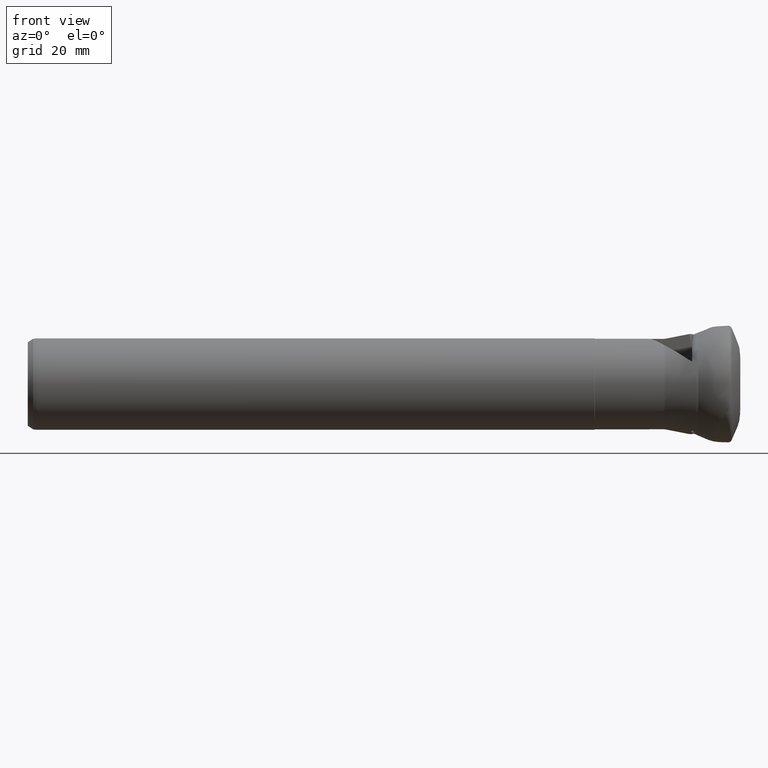
[diagram: clean part render]
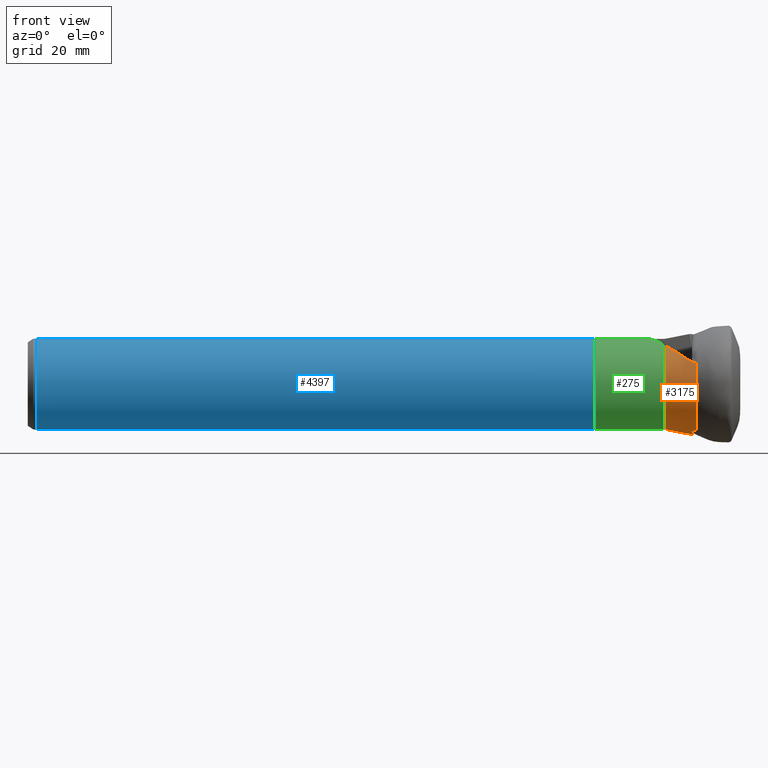
[diagram: same view with three faces highlighted in distinct colors, each labeled with its STEP entity id]
A machine part, front view with three faces highlighted in distinct colors.
Their STEP definitions:

[orange] entity #3175 — the highlighted conical surface has half-angle 10.845 deg.
#25 = CARTESIAN_POINT ( 'NONE',  ( -12.48463755819828900, -12.24165217689133600, 6.293536502592720800 ) ) ;
#84 = CARTESIAN_POINT ( 'NONE',  ( -11.69077448769910000, -3.615201630161818200, -13.44085238544986900 ) ) ;
#146 = CARTESIAN_POINT ( 'NONE',  ( -11.02925917703956000, -12.79861067441094800, 5.779395626261756300 ) ) ;
#175 = DIRECTION ( 'NONE',  ( 1.000000000000000000, -0.0000000000000000000, -0.0000000000000000000 ) ) ;
#239 = CARTESIAN_POINT ( 'NONE',  ( -12.38953671779578700, -4.584484678148489100, -12.99830660113640100 ) ) ;
#289 = B_SPLINE_CURVE_WITH_KNOTS ( 'NONE', 3,
 ( #4054, #860, #4075, #1690, #4452, #2123 ),
 .UNSPECIFIED., .F., .F.,
 ( 4, 2, 4 ),
 ( 5.421010862427522200E-019, 0.0004689846191887401400, 0.0009379692383774801700 ),
 .UNSPECIFIED. ) ;
#293 = B_SPLINE_CURVE_WITH_KNOTS ( 'NONE', 3,
 ( #3316, #1737, #4867, #2556, #25, #2953, #485, #3334 ),
 .UNSPECIFIED., .F., .F.,
 ( 4, 2, 2, 4 ),
 ( 0.001854466259670834900, 0.002552766373837380000, 0.003251066488003925000, 0.004647666716337017400 ),
 .UNSPECIFIED. ) ;
#485 = CARTESIAN_POINT ( 'NONE',  ( -11.46847668512810600, -12.65930190450028000, 5.883437519857838400 ) ) ;
#544 = DIRECTION ( 'NONE',  ( 0.0000000000000000000, 0.0000000000000000000, -1.000000000000000000 ) ) ;
#690 = CARTESIAN_POINT ( 'NONE',  ( -12.37867466272486700, -4.972276862115081500, -12.85711457685265400 ) ) ;
#768 = CARTESIAN_POINT ( 'NONE',  ( -12.84699154354206200, -0.4598034669791161200, -13.68703556957243400 ) ) ;
#771 = FACE_OUTER_BOUND ( 'NONE', #3736, .T. ) ;
#801 = CARTESIAN_POINT ( 'NONE',  ( -12.84435909463576800, -0.4954418570034943000, -13.68629653410403400 ) ) ;
#860 = CARTESIAN_POINT ( 'NONE',  ( -12.83264201964153300, -0.6535580663402837900, -13.68281899243309300 ) ) ;
#890 = VERTEX_POINT ( 'NONE', #801 ) ;
#911 = ORIENTED_EDGE ( 'NONE', *, *, #1094, .T. ) ;
#941 = ORIENTED_EDGE ( 'NONE', *, *, #5230, .T. ) ;
#1077 = DIRECTION ( 'NONE',  ( 1.000000000000000000, -0.0000000000000000000, -0.0000000000000000000 ) ) ;
#1094 = EDGE_CURVE ( 'NONE', #890, #1905, #289, .T. ) ;
#1116 = CARTESIAN_POINT ( 'NONE',  ( -12.22115121417329700, -5.337325577265597000, -12.74239126269342900 ) ) ;
#1219 = CARTESIAN_POINT ( 'NONE',  ( -15.69051209583769900, -10.34482267446805000, 8.370545850244928600 ) ) ;
#1239 = EDGE_CURVE ( 'NONE', #4974, #4558, #4836, .T. ) ;
#1284 = CARTESIAN_POINT ( 'NONE',  ( -12.84435909463576800, -0.4954418570034943000, -13.68629653410403400 ) ) ;
#1471 = VERTEX_POINT ( 'NONE', #2675 ) ;
#1492 = ORIENTED_EDGE ( 'NONE', *, *, #3355, .T. ) ;
#1510 = CARTESIAN_POINT ( 'NONE',  ( -11.72448605640247600, -3.855970498630953500, -13.36466385005033600 ) ) ;
#1524 = CARTESIAN_POINT ( 'NONE',  ( -11.93535424601429200, -5.628973297443345700, -12.67591131569408900 ) ) ;
#1569 = CARTESIAN_POINT ( 'NONE',  ( -12.45613410986681100, -1.332141020560870600, -13.70504729325338600 ) ) ;
#1690 = CARTESIAN_POINT ( 'NONE',  ( -12.65968949744193100, -1.092421151764783500, -13.68785800798146600 ) ) ;
#1732 = EDGE_CURVE ( 'Kante167', #5000, #3650, #1789, .T. ) ;
#1737 = CARTESIAN_POINT ( 'NONE',  ( -13.23311739749768800, -11.85376808269322300, 6.710998224774021600 ) ) ;
#1789 = B_SPLINE_CURVE_WITH_KNOTS ( 'NONE', 3,
 ( #2022, #4359, #2406, #4741 ),
 .UNSPECIFIED., .F., .F.,
 ( 4, 4 ),
 ( 0.001900804661724751000, 0.008471916973087403500 ),
 .UNSPECIFIED. ) ;
#1816 = AXIS2_PLACEMENT_3D ( 'NONE', #2684, #175, #3080 ) ;
#1905 = VERTEX_POINT ( 'NONE', #3703 ) ;
#1950 = CARTESIAN_POINT ( 'NONE',  ( -11.55748605969811200, -5.797240220071261200, -12.67934703913336500 ) ) ;
#1986 = CARTESIAN_POINT ( 'NONE',  ( -12.87635612552166400, -0.3933329434660878300, -13.68351918617245900 ) ) ;
#2022 = CARTESIAN_POINT ( 'NONE',  ( -12.89099991687611900, -0.3601079019870963600, -13.68158724386874100 ) ) ;
#2113 = AXIS2_PLACEMENT_3D ( 'NONE', #4992, #2301, #544 ) ;
#2123 = CARTESIAN_POINT ( 'NONE',  ( -12.45613410986681100, -1.332141020560870600, -13.70504729325338600 ) ) ;
#2136 = CARTESIAN_POINT ( 'NONE',  ( -12.84699154354206200, -0.4598034669791161200, -13.68703556957243400 ) ) ;
#2179 = CARTESIAN_POINT ( 'NONE',  ( -19.32556363557016300, -0.8100564290826706100, -12.42721098533912600 ) ) ;
#2301 = DIRECTION ( 'NONE',  ( 1.000000000000000000, -0.0000000000000000000, -0.0000000000000000000 ) ) ;
#2350 = CARTESIAN_POINT ( 'NONE',  ( -12.16888238562022200, -4.121284869354194100, -13.19640657834671400 ) ) ;
#2366 = CARTESIAN_POINT ( 'NONE',  ( -11.15302565588185900, -5.804153945987366100, -12.76149217255062500 ) ) ;
#2403 = CARTESIAN_POINT ( 'NONE',  ( -11.61871782507151900, -3.128100680945735200, -13.57430880262749000 ) ) ;
#2406 = CARTESIAN_POINT ( 'NONE',  ( -17.18135000374870800, -0.6601184056836066900, -12.84864727982190400 ) ) ;
#2420 = CARTESIAN_POINT ( 'NONE',  ( -12.89099991687611900, -0.3601079019870963600, -13.68158724386874100 ) ) ;
#2556 = CARTESIAN_POINT ( 'NONE',  ( -12.67963675093225700, -12.14880791895752700, 6.391480844682606100 ) ) ;
#2594 = CARTESIAN_POINT ( 'NONE',  ( -11.72448605640247600, -3.855970498630953500, -13.36466385005033600 ) ) ;
#2609 = CARTESIAN_POINT ( 'NONE',  ( -11.65551045496850500, -3.372523609063497100, -13.51074980527486200 ) ) ;
#2675 = CARTESIAN_POINT ( 'NONE',  ( -19.32556363557016300, -6.787161694477368300, 10.44156120632593100 ) ) ;
#2684 = CARTESIAN_POINT ( 'NONE',  ( -11.02925917703945500, 0.0000000000000000000, 0.0000000000000000000 ) ) ;
#2685 = ORIENTED_EDGE ( 'NONE', *, *, #3489, .F. ) ;
#2736 = CARTESIAN_POINT ( 'NONE',  ( -12.35902675791552600, -4.457576692594705600, -13.04842252063494900 ) ) ;
#2805 = EDGE_CURVE ( 'NONE', #4974, #4934, #4721, .T. ) ;
#2837 = ORIENTED_EDGE ( 'NONE', *, *, #3006, .F. ) ;
#2853 = EDGE_CURVE ( 'NONE', #1905, #4558, #3842, .T. ) ;
#2882 = ORIENTED_EDGE ( 'NONE', *, *, #2853, .T. ) ;
#2925 =( BOUNDED_CURVE ( )  B_SPLINE_CURVE ( 3, ( #1284, #4088, #4470, #2136 ),
 .UNSPECIFIED., .F., .F. ) 
 B_SPLINE_CURVE_WITH_KNOTS ( ( 4, 4 ),
 ( 2.767099512888700800, 2.769610021100673300 ),
 .UNSPECIFIED. ) 
 CURVE ( )  GEOMETRIC_REPRESENTATION_ITEM ( )  RATIONAL_B_SPLINE_CURVE ( ( 1.000000000000000000, 0.9999994747791121100, 0.9999994747791121100, 1.000000000000000000 ) ) 
 REPRESENTATION_ITEM ( '' )  );
#2953 = CARTESIAN_POINT ( 'NONE',  ( -11.88700554729628500, -12.50397038098807600, 6.026988727507980300 ) ) ;
#3002 = ORIENTED_EDGE ( 'NONE', *, *, #2805, .T. ) ;
#3005 = CARTESIAN_POINT ( 'NONE',  ( -11.72448605640247600, -3.855970498630953500, -13.36466385005033600 ) ) ;
#3006 = EDGE_CURVE ( 'NONE', #890, #3754, #2925, .T. ) ;
#3072 =( BOUNDED_CURVE ( )  B_SPLINE_CURVE ( 3, ( #3233, #4765, #1219, #4023 ),
 .UNSPECIFIED., .F., .T. ) 
 B_SPLINE_CURVE_WITH_KNOTS ( ( 4, 4 ),
 ( 3.833724541972454200, 4.245131218430410400 ),
 .UNSPECIFIED. ) 
 CURVE ( )  GEOMETRIC_REPRESENTATION_ITEM ( )  RATIONAL_B_SPLINE_CURVE ( ( 1.000000000000000000, 0.9859450438682444400, 0.9859450438682444400, 1.000000000000000000 ) ) 
 REPRESENTATION_ITEM ( '' )  );
#3080 = DIRECTION ( 'NONE',  ( 0.0000000000000000000, 0.0000000000000000000, -1.000000000000000000 ) ) ;
#3135 = CARTESIAN_POINT ( 'NONE',  ( -12.39912038162440000, -4.843061755167534300, -12.90223314571936100 ) ) ;
#3143 = VERTEX_POINT ( 'NONE', #3385 ) ;
#3173 = EDGE_CURVE ( 'NONE', #3870, #4934, #4982, .T. ) ;
#3175 = ADVANCED_FACE ( 'NONE', ( #771 ), #3753, .T. ) ;
#3201 = CARTESIAN_POINT ( 'NONE',  ( -12.86168660798711000, -0.4265649338345133800, -13.68533530213833100 ) ) ;
#3233 = CARTESIAN_POINT ( 'NONE',  ( -19.32556363557016300, -6.787161694477368300, 10.44156120632593100 ) ) ;
#3316 = CARTESIAN_POINT ( 'NONE',  ( -13.40527637212814800, -11.74805511178591600, 6.827262013307660000 ) ) ;
#3334 = CARTESIAN_POINT ( 'NONE',  ( -11.02925917703956000, -12.79861067441094800, 5.779395626261756300 ) ) ;
#3355 = EDGE_CURVE ( 'NONE', #5000, #3754, #4866, .T. ) ;
#3364 = CARTESIAN_POINT ( 'NONE',  ( -12.89099991687611900, -0.3601079019870963600, -13.68158724386874100 ) ) ;
#3385 = CARTESIAN_POINT ( 'NONE',  ( -13.40527637212814800, -11.74805511178591600, 6.827262013307660000 ) ) ;
#3389 = CARTESIAN_POINT ( 'NONE',  ( -11.61871782507151900, -3.128100680945735200, -13.57430880262749000 ) ) ;
#3408 = CARTESIAN_POINT ( 'NONE',  ( -12.84699154354206200, -0.4598034669791161200, -13.68703556957243400 ) ) ;
#3479 = CARTESIAN_POINT ( 'NONE',  ( -19.32556363557016300, 0.0000000000000000000, 0.0000000000000000000 ) ) ;
#3489 = EDGE_CURVE ( 'NONE', #1471, #3143, #3072, .T. ) ;
#3505 = CARTESIAN_POINT ( 'NONE',  ( -11.61871782507151900, -3.128100680945735200, -13.57430880262749000 ) ) ;
#3520 = CARTESIAN_POINT ( 'NONE',  ( -12.28880361217625100, -5.221765458768220300, -12.77642616724598300 ) ) ;
#3587 = AXIS2_PLACEMENT_3D ( 'NONE', #3479, #1077, #3892 ) ;
#3650 = VERTEX_POINT ( 'NONE', #2179 ) ;
#3703 = CARTESIAN_POINT ( 'NONE',  ( -12.45613410986681100, -1.332141020560870600, -13.70504729325338600 ) ) ;
#3736 = EDGE_LOOP ( 'NONE', ( #2685, #941, #5057, #1492, #2837, #911, #2882, #4702, #3002, #4424, #5114 ) ) ;
#3753 = CONICAL_SURFACE ( 'NONE', #2113, 14.04299999999999700, 0.1892875687147432000 ) ;
#3754 = VERTEX_POINT ( 'NONE', #3408 ) ;
#3842 =( BOUNDED_CURVE ( )  B_SPLINE_CURVE ( 3, ( #1569, #3960, #4726, #2403 ),
 .UNSPECIFIED., .F., .T. ) 
 B_SPLINE_CURVE_WITH_KNOTS ( ( 4, 4 ),
 ( 4.313403113203619000, 4.439529772579418500 ),
 .UNSPECIFIED. ) 
 CURVE ( )  GEOMETRIC_REPRESENTATION_ITEM ( )  RATIONAL_B_SPLINE_CURVE ( ( 1.000000000000000000, 0.9986747781023805900, 0.9986747781023805900, 1.000000000000000000 ) ) 
 REPRESENTATION_ITEM ( '' )  );
#3870 = VERTEX_POINT ( 'NONE', #146 ) ;
#3892 = DIRECTION ( 'NONE',  ( 0.0000000000000000000, 0.0000000000000000000, -1.000000000000000000 ) ) ;
#3914 = CARTESIAN_POINT ( 'NONE',  ( -11.85249909761524400, -3.891392660712769600, -13.32891859892706800 ) ) ;
#3932 = CARTESIAN_POINT ( 'NONE',  ( -12.04355687561409400, -5.542338385596836200, -12.69170100726583600 ) ) ;
#3960 = CARTESIAN_POINT ( 'NONE',  ( -12.18333096745414700, -1.933032816898223800, -13.69915040932523300 ) ) ;
#4023 = CARTESIAN_POINT ( 'NONE',  ( -13.40527637212814800, -11.74805511178591600, 6.827262013307660000 ) ) ;
#4054 = CARTESIAN_POINT ( 'NONE',  ( -12.84435909463576800, -0.4954418570034943000, -13.68629653410403400 ) ) ;
#4075 = CARTESIAN_POINT ( 'NONE',  ( -12.79277196986690000, -0.8059744644325048700, -13.68216871123295600 ) ) ;
#4088 = CARTESIAN_POINT ( 'NONE',  ( -12.84523939015374300, -0.4835626985558640900, -13.68655779933857600 ) ) ;
#4300 = CARTESIAN_POINT ( 'NONE',  ( -11.69229949827026100, -5.756828675168820900, -12.66952287877470300 ) ) ;
#4359 = CARTESIAN_POINT ( 'NONE',  ( -15.03643699928836100, -0.5101314773855444300, -13.26647086254141800 ) ) ;
#4424 = ORIENTED_EDGE ( 'NONE', *, *, #3173, .F. ) ;
#4452 = CARTESIAN_POINT ( 'NONE',  ( -12.56890336999146900, -1.221187558967547800, -13.69412576938039400 ) ) ;
#4470 = CARTESIAN_POINT ( 'NONE',  ( -12.84611687358338200, -0.4716832289750594900, -13.68680414462409300 ) ) ;
#4509 = CARTESIAN_POINT ( 'NONE',  ( -11.02925917703947100, -5.760464015571924000, -12.80714266826527000 ) ) ;
#4558 = VERTEX_POINT ( 'NONE', #3505 ) ;
#4621 = CIRCLE ( 'NONE', #3587, 12.45358439536311000 ) ;
#4672 = CARTESIAN_POINT ( 'NONE',  ( -11.97130863296027800, -3.954463211050386600, -13.28684896516153900 ) ) ;
#4684 = CARTESIAN_POINT ( 'NONE',  ( -11.28856553954107000, -5.820776543473405300, -12.72523541684814300 ) ) ;
#4702 = ORIENTED_EDGE ( 'NONE', *, *, #1239, .F. ) ;
#4721 = B_SPLINE_CURVE_WITH_KNOTS ( 'NONE', 3,
 ( #1510, #3914, #4672, #2350, #5039, #2736, #239, #3135, #690, #3520, #1116, #3932, #1524, #4300, #1950, #4684, #2366, #5058 ),
 .UNSPECIFIED., .F., .F.,
 ( 4, 2, 2, 2, 2, 2, 2, 2, 4 ),
 ( 0.0007220750481062820600, 0.001132804814410613700, 0.001543534580714945400, 0.001954264347019276900, 0.002364994113323608300, 0.002775723879627939800, 0.003186453645932271800, 0.003597183412236603300, 0.004007913178540934700 ),
 .UNSPECIFIED. ) ;
#4726 = CARTESIAN_POINT ( 'NONE',  ( -11.90382179417870700, -2.532480438140658900, -13.65551308330994700 ) ) ;
#4741 = CARTESIAN_POINT ( 'NONE',  ( -19.32556363557016300, -0.8100564290826706100, -12.42721098533912600 ) ) ;
#4765 = CARTESIAN_POINT ( 'NONE',  ( -17.69207303484448300, -8.667618504329912100, 9.592486571145551400 ) ) ;
#4836 =( BOUNDED_CURVE ( )  B_SPLINE_CURVE ( 3, ( #3005, #84, #2609, #3389 ),
 .UNSPECIFIED., .F., .F. ) 
 B_SPLINE_CURVE_WITH_KNOTS ( ( 4, 4 ),
 ( 3.652655049215872000, 3.704687454947443600 ),
 .UNSPECIFIED. ) 
 CURVE ( )  GEOMETRIC_REPRESENTATION_ITEM ( )  RATIONAL_B_SPLINE_CURVE ( ( 1.000000000000000000, 0.9997743984546447700, 0.9997743984546447700, 1.000000000000000000 ) ) 
 REPRESENTATION_ITEM ( '' )  );
#4866 =( BOUNDED_CURVE ( )  B_SPLINE_CURVE ( 3, ( #2420, #1986, #3201, #768 ),
 .UNSPECIFIED., .F., .T. ) 
 B_SPLINE_CURVE_WITH_KNOTS ( ( 4, 4 ),
 ( 4.245311037378050000, 4.252302622021335100 ),
 .UNSPECIFIED. ) 
 CURVE ( )  GEOMETRIC_REPRESENTATION_ITEM ( )  RATIONAL_B_SPLINE_CURVE ( ( 1.000000000000000000, 0.9999959264828295300, 0.9999959264828295300, 1.000000000000000000 ) ) 
 REPRESENTATION_ITEM ( '' )  );
#4867 = CARTESIAN_POINT ( 'NONE',  ( -13.05372806684217200, -11.95489170372424900, 6.600203895989804600 ) ) ;
#4903 = EDGE_CURVE ( 'NONE', #3143, #3870, #293, .T. ) ;
#4934 = VERTEX_POINT ( 'NONE', #4509 ) ;
#4974 = VERTEX_POINT ( 'NONE', #2594 ) ;
#4982 = CIRCLE ( 'NONE', #1816, 14.04299999999999700 ) ;
#4992 = CARTESIAN_POINT ( 'NONE',  ( -11.02925917703945500, 0.0000000000000000000, 0.0000000000000000000 ) ) ;
#5000 = VERTEX_POINT ( 'NONE', #3364 ) ;
#5039 = CARTESIAN_POINT ( 'NONE',  ( -12.24908949290502500, -4.226226841347886100, -13.14730329380991200 ) ) ;
#5057 = ORIENTED_EDGE ( 'NONE', *, *, #1732, .F. ) ;
#5058 = CARTESIAN_POINT ( 'NONE',  ( -11.02925917703947100, -5.760464015571924000, -12.80714266826527000 ) ) ;
#5114 = ORIENTED_EDGE ( 'NONE', *, *, #4903, .F. ) ;
#5230 = EDGE_CURVE ( 'NONE', #1471, #3650, #4621, .T. ) ;

[blue] entity #4397 — the highlighted cylindrical surface (bore or boss wall) has radius 12.5 mm, axis along (-1, -0, -0).
#118 = DIRECTION ( 'NONE',  ( -1.000000000000000000, -0.0000000000000000000, -0.0000000000000000000 ) ) ;
#695 = AXIS2_PLACEMENT_3D ( 'NONE', #1827, #118, #2244 ) ;
#1268 = CARTESIAN_POINT ( 'NONE',  ( -191.4052591770391400, 0.0000000000000000000, 0.0000000000000000000 ) ) ;
#1487 = CARTESIAN_POINT ( 'NONE',  ( -38.88205409628258000, 0.0000000000000000000, 12.50000000000000000 ) ) ;
#1644 = AXIS2_PLACEMENT_3D ( 'NONE', #1268, #4074, #1689 ) ;
#1689 = DIRECTION ( 'NONE',  ( 0.0000000000000000000, 0.0000000000000000000, -1.000000000000000000 ) ) ;
#1827 = CARTESIAN_POINT ( 'NONE',  ( -33.90525917703946100, 0.0000000000000000000, 0.0000000000000000000 ) ) ;
#1871 = DIRECTION ( 'NONE',  ( 1.000000000000000000, -0.0000000000000000000, -0.0000000000000000000 ) ) ;
#2244 = DIRECTION ( 'NONE',  ( 0.0000000000000000000, 0.0000000000000000000, 1.000000000000000000 ) ) ;
#2321 = VERTEX_POINT ( 'NONE', #4259 ) ;
#2457 = CIRCLE ( 'NONE', #2825, 12.50000000000000000 ) ;
#2825 = AXIS2_PLACEMENT_3D ( 'NONE', #4226, #1871, #4613 ) ;
#3351 = VERTEX_POINT ( 'NONE', #1487 ) ;
#3681 = CYLINDRICAL_SURFACE ( 'NONE', #695, 12.50000000000000000 ) ;
#3802 = FACE_OUTER_BOUND ( 'NONE', #4462, .T. ) ;
#3812 = CIRCLE ( 'NONE', #1644, 12.50000000000000000 ) ;
#3875 = EDGE_CURVE ( 'NONE', #3351, #3351, #2457, .T. ) ;
#3920 = FACE_OUTER_BOUND ( 'NONE', #4206, .T. ) ;
#4074 = DIRECTION ( 'NONE',  ( -1.000000000000000000, 0.0000000000000000000, 0.0000000000000000000 ) ) ;
#4206 = EDGE_LOOP ( 'NONE', ( #4686 ) ) ;
#4226 = CARTESIAN_POINT ( 'NONE',  ( -38.88205409628258000, 0.0000000000000000000, 0.0000000000000000000 ) ) ;
#4244 = EDGE_CURVE ( 'NONE', #2321, #2321, #3812, .T. ) ;
#4259 = CARTESIAN_POINT ( 'NONE',  ( -191.4052591770391400, 0.0000000000000000000, -12.50000000000000000 ) ) ;
#4269 = ORIENTED_EDGE ( 'NONE', *, *, #3875, .F. ) ;
#4397 = ADVANCED_FACE ( 'NONE', ( #3802, #3920 ), #3681, .T. ) ;
#4462 = EDGE_LOOP ( 'NONE', ( #4269 ) ) ;
#4613 = DIRECTION ( 'NONE',  ( 0.0000000000000000000, 0.0000000000000000000, 1.000000000000000000 ) ) ;
#4686 = ORIENTED_EDGE ( 'NONE', *, *, #4244, .F. ) ;

[green] entity #275 — the highlighted cylindrical surface (bore or boss wall) has radius 12.4 mm, axis along (1, -0, -0).
#67 = CARTESIAN_POINT ( 'NONE',  ( -19.89004134527380400, -0.8495285557354130800, -12.37086501555125300 ) ) ;
#87 = VERTEX_POINT ( 'NONE', #67 ) ;
#93 = CIRCLE ( 'NONE', #4034, 12.39999999999999300 ) ;
#96 = ORIENTED_EDGE ( 'NONE', *, *, #646, .T. ) ;
#110 = EDGE_CURVE ( 'NONE', #3470, #3470, #2313, .T. ) ;
#111 = ORIENTED_EDGE ( 'NONE', *, *, #3209, .F. ) ;
#178 =( BOUNDED_CURVE ( )  B_SPLINE_CURVE ( 3, ( #2143, #4846, #3312, #899 ),
 .UNSPECIFIED., .F., .F. ) 
 B_SPLINE_CURVE_WITH_KNOTS ( ( 4, 4 ),
 ( 1.639360401890297200, 1.658332575621686200 ),
 .UNSPECIFIED. ) 
 CURVE ( )  GEOMETRIC_REPRESENTATION_ITEM ( )  RATIONAL_B_SPLINE_CURVE ( ( 1.000000000000000000, 0.9999700049435873400, 0.9999700049435873400, 1.000000000000000000 ) ) 
 REPRESENTATION_ITEM ( '' )  );
#191 = CARTESIAN_POINT ( 'NONE',  ( -38.70884901552567900, 0.0000000000000000000, -12.39999999999999500 ) ) ;
#242 = CARTESIAN_POINT ( 'NONE',  ( -24.08510931450248200, -0.7062196491119499000, -12.37996702173212100 ) ) ;
#275 = ADVANCED_FACE ( 'Fl�che9', ( #3226, #951 ), #820, .T. ) ;
#388 = CARTESIAN_POINT ( 'NONE',  ( -19.89004134527380400, 0.0000000000000000000, 0.0000000000000000000 ) ) ;
#398 = CARTESIAN_POINT ( 'NONE',  ( -24.08510931450248200, 0.7062196491119499000, 12.37996702173212100 ) ) ;
#417 = CARTESIAN_POINT ( 'NONE',  ( -19.89004134527380400, 0.8495285557354130800, 12.37086501555125300 ) ) ;
#422 = EDGE_CURVE ( 'NONE', #3810, #4278, #93, .T. ) ;
#545 = CARTESIAN_POINT ( 'NONE',  ( 0.0000000000000000000, 0.0000000000000000000, 0.0000000000000000000 ) ) ;
#616 = DIRECTION ( 'NONE',  ( 0.0000000000000000000, 0.0000000000000000000, -1.000000000000000000 ) ) ;
#635 = CARTESIAN_POINT ( 'NONE',  ( -23.40010465994686600, -1.845840560606082400, 12.48686495285100400 ) ) ;
#636 = DIRECTION ( 'NONE',  ( 1.000000000000000000, -0.0000000000000000000, -0.0000000000000000000 ) ) ;
#646 = EDGE_CURVE ( 'NONE', #3946, #2348, #2616, .T. ) ;
#696 = CARTESIAN_POINT ( 'NONE',  ( -23.98237085165979100, -0.8736718330981581000, -12.36944901103014900 ) ) ;
#726 =( BOUNDED_CURVE ( )  B_SPLINE_CURVE ( 3, ( #1225, #3642, #2472, #5168 ),
 .UNSPECIFIED., .F., .F. ) 
 B_SPLINE_CURVE_WITH_KNOTS ( ( 4, 4 ),
 ( 3.382142440947793400, 3.945495559307734100 ),
 .UNSPECIFIED. ) 
 CURVE ( )  GEOMETRIC_REPRESENTATION_ITEM ( )  RATIONAL_B_SPLINE_CURVE ( ( 1.000000000000000000, 0.9737271741579596200, 0.9737271741579596200, 1.000000000000000000 ) ) 
 REPRESENTATION_ITEM ( '' )  );
#820 = CYLINDRICAL_SURFACE ( 'NONE', #2461, 12.39999999999999500 ) ;
#899 = CARTESIAN_POINT ( 'NONE',  ( -23.24405145381697600, 1.084063789852098400, 12.35252224039816800 ) ) ;
#951 = FACE_OUTER_BOUND ( 'NONE', #4749, .T. ) ;
#961 =( BOUNDED_CURVE ( )  B_SPLINE_CURVE ( 3, ( #2137, #3705, #2527, #5223 ),
 .UNSPECIFIED., .F., .F. ) 
 B_SPLINE_CURVE_WITH_KNOTS ( ( 4, 4 ),
 ( 1.639360401890297200, 1.658332575621686200 ),
 .UNSPECIFIED. ) 
 CURVE ( )  GEOMETRIC_REPRESENTATION_ITEM ( )  RATIONAL_B_SPLINE_CURVE ( ( 1.000000000000000000, 0.9999700049435873400, 0.9999700049435873400, 1.000000000000000000 ) ) 
 REPRESENTATION_ITEM ( '' )  );
#1034 = CARTESIAN_POINT ( 'NONE',  ( -24.10003802925034900, 0.5596826819395287500, 12.38745464051314600 ) ) ;
#1109 = CARTESIAN_POINT ( 'NONE',  ( -21.96365728082347600, -4.137848937960441700, 11.92506309805264500 ) ) ;
#1119 = CARTESIAN_POINT ( 'NONE',  ( -23.72626172958624800, -1.023435327547562500, -12.35777358190526200 ) ) ;
#1147 = VERTEX_POINT ( 'NONE', #2528 ) ;
#1214 = CARTESIAN_POINT ( 'NONE',  ( -23.63265009920494100, 1.052117457994685500, 12.35529602869104700 ) ) ;
#1225 = CARTESIAN_POINT ( 'NONE',  ( -24.08616488717509400, -0.5120036210849759900, -12.38942501861953700 ) ) ;
#1353 = ORIENTED_EDGE ( 'NONE', *, *, #4732, .F. ) ;
#1413 = CARTESIAN_POINT ( 'NONE',  ( -23.43947961464390400, 1.086113812856054800, 12.35235394115345600 ) ) ;
#1479 = CARTESIAN_POINT ( 'NONE',  ( -23.98237085165979100, 0.8736718330981581000, 12.36944901103014900 ) ) ;
#1527 = CARTESIAN_POINT ( 'NONE',  ( -23.43947961464390400, -1.086113812856054800, -12.35235394115345600 ) ) ;
#1539 = CARTESIAN_POINT ( 'NONE',  ( -23.24405145381697600, 1.084063789852098400, 12.35252224039816800 ) ) ;
#1587 = EDGE_CURVE ( 'NONE', #4973, #1147, #3649, .T. ) ;
#1595 = CARTESIAN_POINT ( 'NONE',  ( -23.72626172958624800, 1.023435327547562500, 12.35777358190526200 ) ) ;
#1676 = DIRECTION ( 'NONE',  ( 0.0000000000000000000, 0.0000000000000000000, -1.000000000000000000 ) ) ;
#1705 = DIRECTION ( 'NONE',  ( 1.000000000000000000, -0.0000000000000000000, -0.0000000000000000000 ) ) ;
#1752 = ORIENTED_EDGE ( 'NONE', *, *, #1587, .T. ) ;
#1898 = ORIENTED_EDGE ( 'NONE', *, *, #422, .F. ) ;
#1931 = DIRECTION ( 'NONE',  ( 1.000000000000000000, -0.0000000000000000000, -0.0000000000000000000 ) ) ;
#1954 = CARTESIAN_POINT ( 'NONE',  ( -23.24405145381697600, -1.084063789852098400, -12.35252224039816800 ) ) ;
#1957 = CARTESIAN_POINT ( 'NONE',  ( -38.70884901552567900, 0.0000000000000000000, 0.0000000000000000000 ) ) ;
#2137 = CARTESIAN_POINT ( 'NONE',  ( -19.89004134527380400, -0.8495285557354130800, -12.37086501555125300 ) ) ;
#2143 = CARTESIAN_POINT ( 'NONE',  ( -19.89004134527380400, 0.8495285557354130800, 12.37086501555125300 ) ) ;
#2201 = CARTESIAN_POINT ( 'NONE',  ( -23.34213097122913500, 1.090922177821687300, 12.35192034469541900 ) ) ;
#2234 = CARTESIAN_POINT ( 'NONE',  ( -23.24405145381697600, 1.084063789852098400, 12.35252224039816800 ) ) ;
#2313 = CIRCLE ( 'NONE', #4884, 12.39999999999999500 ) ;
#2348 = VERTEX_POINT ( 'NONE', #1539 ) ;
#2413 = ORIENTED_EDGE ( 'NONE', *, *, #3607, .F. ) ;
#2461 = AXIS2_PLACEMENT_3D ( 'NONE', #545, #636, #616 ) ;
#2472 = CARTESIAN_POINT ( 'NONE',  ( -21.96365728082347600, 4.137848937960441700, -11.92506309805264500 ) ) ;
#2527 = CARTESIAN_POINT ( 'NONE',  ( -22.12689430869773200, -1.005944552254011400, -12.35937802540488800 ) ) ;
#2528 = CARTESIAN_POINT ( 'NONE',  ( -23.24405145381697600, -1.084063789852098400, -12.35252224039816800 ) ) ;
#2547 =( BOUNDED_CURVE ( )  B_SPLINE_CURVE ( 3, ( #3130, #635, #1109, #3927 ),
 .UNSPECIFIED., .F., .F. ) 
 B_SPLINE_CURVE_WITH_KNOTS ( ( 4, 4 ),
 ( 3.382142440947793400, 3.945495559307734100 ),
 .UNSPECIFIED. ) 
 CURVE ( )  GEOMETRIC_REPRESENTATION_ITEM ( )  RATIONAL_B_SPLINE_CURVE ( ( 1.000000000000000000, 0.9737271741579596200, 0.9737271741579596200, 1.000000000000000000 ) ) 
 REPRESENTATION_ITEM ( '' )  );
#2616 = B_SPLINE_CURVE_WITH_KNOTS ( 'NONE', 3,
 ( #3033, #1034, #3370, #398, #3572, #1479, #3525, #1595, #1214, #1413, #2201, #2234 ),
 .UNSPECIFIED., .F., .F.,
 ( 4, 2, 2, 2, 2, 4 ),
 ( 5.421010862427522200E-019, 0.0001468692598765678500, 0.0002937385197531351600, 0.0005874770395062694400, 0.0008812155592594037300, 0.001174954079012538000 ),
 .UNSPECIFIED. ) ;
#2739 = CARTESIAN_POINT ( 'NONE',  ( -24.10283271111433100, -0.6098227277811980600, -12.38508966025874800 ) ) ;
#2770 = ORIENTED_EDGE ( 'NONE', *, *, #4561, .F. ) ;
#2909 = ORIENTED_EDGE ( 'NONE', *, *, #4298, .F. ) ;
#3033 = CARTESIAN_POINT ( 'NONE',  ( -24.08616488717509400, 0.5120036210849759900, 12.38942501861953700 ) ) ;
#3038 = CARTESIAN_POINT ( 'NONE',  ( -19.89004134527380800, 6.183368900197905300, -10.74829982109101500 ) ) ;
#3093 = CARTESIAN_POINT ( 'NONE',  ( -24.08616488717509400, 0.5120036210849759900, 12.38942501861953700 ) ) ;
#3130 = CARTESIAN_POINT ( 'NONE',  ( -24.08616488717509400, 0.5120036210849759900, 12.38942501861953700 ) ) ;
#3138 = CARTESIAN_POINT ( 'NONE',  ( -24.06466515719551000, -0.7523251860271380500, -12.37722301817249200 ) ) ;
#3157 = CARTESIAN_POINT ( 'NONE',  ( -19.89004134527380800, -6.183368900197905300, 10.74829982109101500 ) ) ;
#3209 = EDGE_CURVE ( 'NONE', #3946, #4008, #2547, .T. ) ;
#3226 = FACE_OUTER_BOUND ( 'NONE', #4176, .T. ) ;
#3312 = CARTESIAN_POINT ( 'NONE',  ( -22.12689430869773200, 1.005944552254011400, 12.35937802540488800 ) ) ;
#3370 = CARTESIAN_POINT ( 'NONE',  ( -24.10283271111433100, 0.6098227277811980600, 12.38508966025874800 ) ) ;
#3470 = VERTEX_POINT ( 'NONE', #191 ) ;
#3524 = CARTESIAN_POINT ( 'NONE',  ( -23.90089069811528300, -0.9345448090207472100, -12.36481353564381200 ) ) ;
#3525 = CARTESIAN_POINT ( 'NONE',  ( -23.90089069811528300, 0.9345448090207472100, 12.36481353564381200 ) ) ;
#3572 = CARTESIAN_POINT ( 'NONE',  ( -24.06466515719551000, 0.7523251860271380500, 12.37722301817249200 ) ) ;
#3590 = DIRECTION ( 'NONE',  ( 0.0000000000000000000, 0.0000000000000000000, -1.000000000000000000 ) ) ;
#3607 = EDGE_CURVE ( 'NONE', #4278, #2348, #178, .T. ) ;
#3642 = CARTESIAN_POINT ( 'NONE',  ( -23.40010465994686600, 1.845840560606082400, -12.48686495285100400 ) ) ;
#3649 = B_SPLINE_CURVE_WITH_KNOTS ( 'NONE', 3,
 ( #5044, #4675, #2739, #242, #3138, #696, #3524, #1119, #3935, #1527, #4303, #1954 ),
 .UNSPECIFIED., .F., .F.,
 ( 4, 2, 2, 2, 2, 4 ),
 ( 5.421010862427522200E-019, 0.0001468692598765678500, 0.0002937385197531351600, 0.0005874770395062694400, 0.0008812155592594037300, 0.001174954079012538000 ),
 .UNSPECIFIED. ) ;
#3705 = CARTESIAN_POINT ( 'NONE',  ( -21.00885740360334400, -0.9277637958455872100, -12.36549246719228100 ) ) ;
#3810 = VERTEX_POINT ( 'NONE', #3038 ) ;
#3917 = DIRECTION ( 'NONE',  ( 1.000000000000000000, -0.0000000000000000000, -0.0000000000000000000 ) ) ;
#3927 = CARTESIAN_POINT ( 'NONE',  ( -19.89004134527380800, -6.183368900197905300, 10.74829982109101500 ) ) ;
#3935 = CARTESIAN_POINT ( 'NONE',  ( -23.63265009920494100, -1.052117457994685500, -12.35529602869104700 ) ) ;
#3946 = VERTEX_POINT ( 'NONE', #3093 ) ;
#4008 = VERTEX_POINT ( 'NONE', #3157 ) ;
#4034 = AXIS2_PLACEMENT_3D ( 'NONE', #388, #3917, #3590 ) ;
#4042 = AXIS2_PLACEMENT_3D ( 'NONE', #4283, #1931, #4673 ) ;
#4146 = CARTESIAN_POINT ( 'NONE',  ( -24.08616488717509400, -0.5120036210849759900, -12.38942501861953700 ) ) ;
#4176 = EDGE_LOOP ( 'NONE', ( #111, #96, #2413, #1898, #1353, #1752, #2909, #2770 ) ) ;
#4278 = VERTEX_POINT ( 'NONE', #417 ) ;
#4283 = CARTESIAN_POINT ( 'NONE',  ( -19.89004134527380400, 0.0000000000000000000, 0.0000000000000000000 ) ) ;
#4298 = EDGE_CURVE ( 'NONE', #87, #1147, #961, .T. ) ;
#4303 = CARTESIAN_POINT ( 'NONE',  ( -23.34213097122913500, -1.090922177821687300, -12.35192034469541900 ) ) ;
#4561 = EDGE_CURVE ( 'NONE', #4008, #87, #4569, .T. ) ;
#4569 = CIRCLE ( 'NONE', #4042, 12.39999999999999300 ) ;
#4673 = DIRECTION ( 'NONE',  ( 0.0000000000000000000, 0.0000000000000000000, -1.000000000000000000 ) ) ;
#4675 = CARTESIAN_POINT ( 'NONE',  ( -24.10003802925034900, -0.5596826819395287500, -12.38745464051314600 ) ) ;
#4732 = EDGE_CURVE ( 'NONE', #4973, #3810, #726, .T. ) ;
#4749 = EDGE_LOOP ( 'NONE', ( #4940 ) ) ;
#4846 = CARTESIAN_POINT ( 'NONE',  ( -21.00885740360334400, 0.9277637958455872100, 12.36549246719228100 ) ) ;
#4884 = AXIS2_PLACEMENT_3D ( 'NONE', #1957, #1705, #1676 ) ;
#4940 = ORIENTED_EDGE ( 'NONE', *, *, #110, .T. ) ;
#4973 = VERTEX_POINT ( 'NONE', #4146 ) ;
#5044 = CARTESIAN_POINT ( 'NONE',  ( -24.08616488717509400, -0.5120036210849759900, -12.38942501861953700 ) ) ;
#5168 = CARTESIAN_POINT ( 'NONE',  ( -19.89004134527380800, 6.183368900197905300, -10.74829982109101500 ) ) ;
#5223 = CARTESIAN_POINT ( 'NONE',  ( -23.24405145381697600, -1.084063789852098400, -12.35252224039816800 ) ) ;